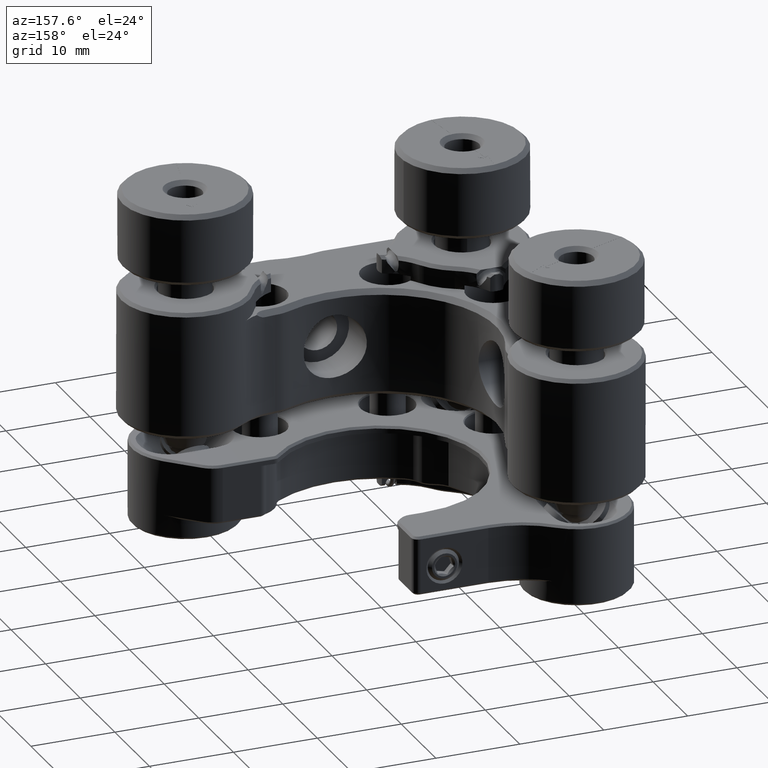
[diagram: clean part render]
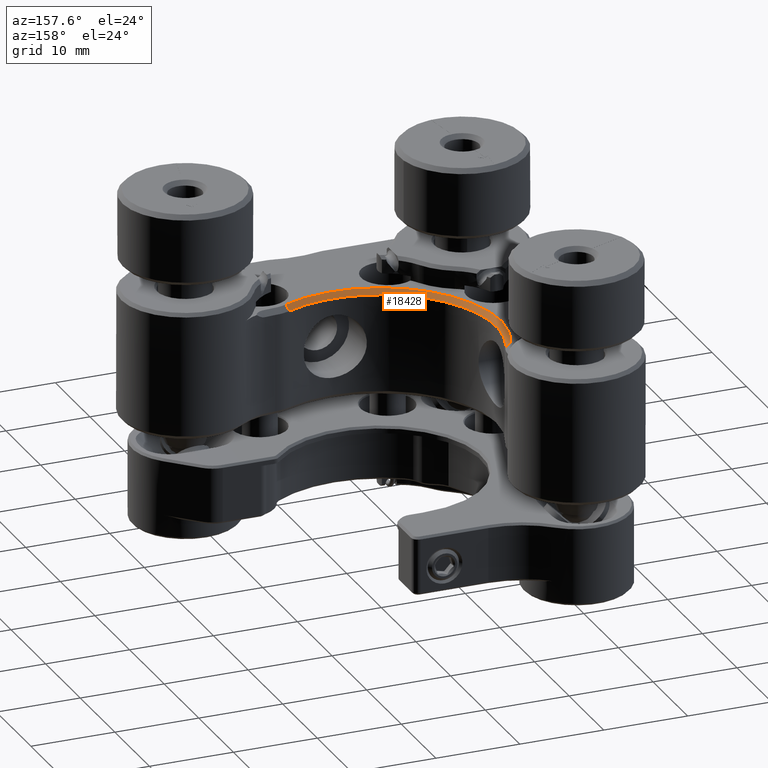
[diagram: same view with one face highlighted and labeled with its STEP entity id]
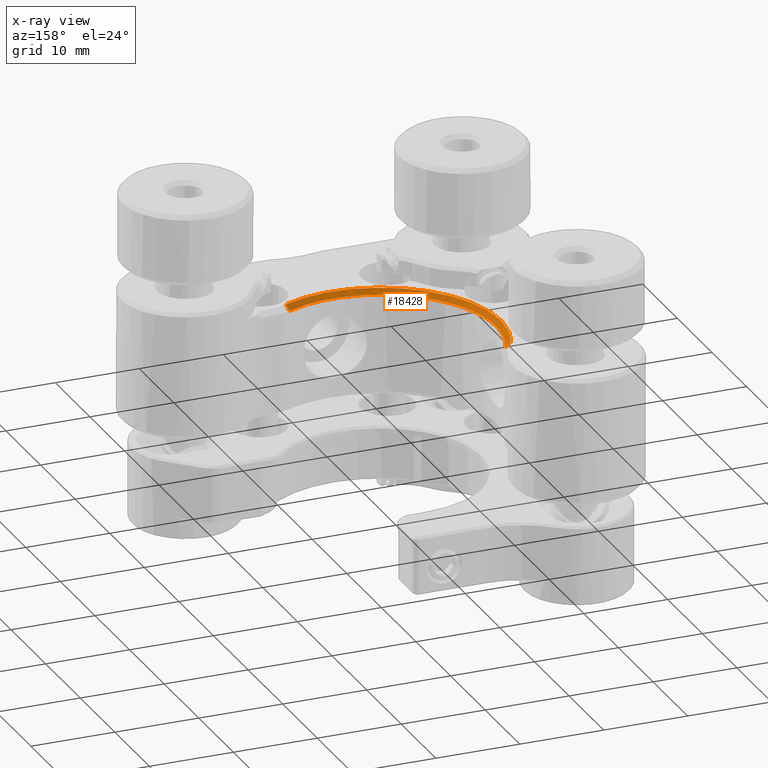
[diagram: x-ray of the same camera — body ghosted, the highlighted face saturated]
A machine part, auxiliary view. The second image highlights one B-rep face of the part: STEP entity #18428.
The next image is the same camera in x-ray: the body ghosted, the highlighted face saturated — about 0% of this face is hidden behind the body in this view.
In plain terms, the highlighted face is a freeform B-spline surface patch.
Its self-contained STEP definition (entity closure, byte-faithful):
#139 = CARTESIAN_POINT ( 'NONE',  ( 19.24730792918984790, 15.64880969866480243, 38.21517109685325408 ) ) ;
#465 = CARTESIAN_POINT ( 'NONE',  ( 16.47653494077884062, 17.38409946762516611, 38.20170909685323579 ) ) ;
#780 = CARTESIAN_POINT ( 'NONE',  ( 17.82237525260752520, 16.44007081035195483, 38.20170909685331395 ) ) ;
#1097 = CARTESIAN_POINT ( 'NONE',  ( 20.73377883949277134, 15.06398501388357403, 38.20170909685329264 ) ) ;
#1455 = CARTESIAN_POINT ( 'NONE',  ( 13.54258543264356973, 21.64574088706451960, 37.61534364687400966 ) ) ;
#1518 = CARTESIAN_POINT ( 'NONE',  ( 16.47653494077890457, 17.38409946762524783, 38.20170909685313632 ) ) ;
#1773 = CARTESIAN_POINT ( 'NONE',  ( 11.99331800881225440, 31.73110454596939789, 37.61402657809988170 ) ) ;
#2089 = CARTESIAN_POINT ( 'NONE',  ( 13.90916373422556696, 21.05901207916309659, 37.61600211872718802 ) ) ;
#2531 = CARTESIAN_POINT ( 'NONE',  ( 11.02171863510696248, 28.69785547257853509, 38.21517109685329672 ) ) ;
#2688 = CARTESIAN_POINT ( 'NONE',  ( 31.09112811455937475, 16.98377057734138162, 36.85550909685332499 ) ) ;
#4687 = CARTESIAN_POINT ( 'NONE',  ( 16.18799403821036620, 19.44093970184710685, 36.85550909685332499 ) ) ;
#4715 = CARTESIAN_POINT ( 'NONE',  ( 31.11827903063990064, 16.17198825368979698, 37.61121635124558793 ) ) ;
#4998 = CARTESIAN_POINT ( 'NONE',  ( 11.14140184896129426, 30.34918086200402598, 38.20170909685323579 ) ) ;
#5029 = CARTESIAN_POINT ( 'NONE',  ( 26.42193150484583697, 14.93052654547742364, 37.61429102110292888 ) ) ;
#5318 = CARTESIAN_POINT ( 'NONE',  ( 15.22428938196096126, 18.47723504559770191, 38.21517109685326830 ) ) ;
#5633 = CARTESIAN_POINT ( 'NONE',  ( 13.60665585786252763, 34.05386472451843360, 36.85550909685329657 ) ) ;
#5951 = CARTESIAN_POINT ( 'NONE',  ( 20.72942653682288494, 15.05121794035752636, 38.21517109685328251 ) ) ;
#5982 = CARTESIAN_POINT ( 'NONE',  ( 12.28312200207011351, 32.74173651377132899, 37.61212592964550083 ) ) ;
#6044 = CARTESIAN_POINT ( 'NONE',  ( 11.14140184896139552, 30.34918086200401532, 38.20170909685313632 ) ) ;
#6629 = CARTESIAN_POINT ( 'NONE',  ( 12.63625213476524856, 33.73030105951978186, 37.62070971113516293 ) ) ;
#6693 = CARTESIAN_POINT ( 'NONE',  ( 15.23383101222092861, 18.48677667585766571, 38.20170909685316474 ) ) ;
#6887 = EDGE_CURVE ( 'NONE', #57443, #63410, #55216, .T. ) ;
#6942 = CARTESIAN_POINT ( 'NONE',  ( 12.16968932455882424, 24.83846745172613879, 37.61552860554282773 ) ) ;
#7223 = CARTESIAN_POINT ( 'NONE',  ( 28.33187767364583465, 15.98636402371899479, 36.85550909685331078 ) ) ;
#7388 = CARTESIAN_POINT ( 'NONE',  ( 11.40725869048616303, 31.89555003162396218, 38.21517109685329672 ) ) ;
#7547 = CARTESIAN_POINT ( 'NONE',  ( 30.80091906088165743, 16.85960152149919011, 36.85550909685329657 ) ) ;
#9531 = CARTESIAN_POINT ( 'NONE',  ( 31.57861752059183758, 15.72868076352413524, 38.20170909685327842 ) ) ;
#9852 = CARTESIAN_POINT ( 'NONE',  ( 11.39048940095305085, 25.48101563646892131, 38.20170909685329264 ) ) ;
#9881 = CARTESIAN_POINT ( 'NONE',  ( 28.49144771488204597, 15.26319054590263491, 37.61470712646657688 ) ) ;
#10166 = CARTESIAN_POINT ( 'NONE',  ( 13.18712514671522484, 21.07532091624426940, 38.20170909685323579 ) ) ;
#10482 = CARTESIAN_POINT ( 'NONE',  ( 11.79827227672081769, 23.98237220045965046, 38.21517109685325408 ) ) ;
#10807 = CARTESIAN_POINT ( 'NONE',  ( 11.12184241177692101, 27.06301735298007216, 38.20170909685327842 ) ) ;
#10838 = CARTESIAN_POINT ( 'NONE',  ( 14.73979863436963456, 19.95090695494809196, 37.61545838139014819 ) ) ;
#10905 = CARTESIAN_POINT ( 'NONE',  ( 25.44483637994455449, 14.28815705442954886, 38.20170909685312211 ) ) ;
#11161 = CARTESIAN_POINT ( 'NONE',  ( 11.99588341202367836, 25.50774107431071513, 37.61533168876301403 ) ) ;
#11482 = EDGE_CURVE ( 'NONE', #14895, #24430, #29154, .T. ) ;
#11486 = CARTESIAN_POINT ( 'NONE',  ( 21.59608162914361529, 15.41970801569829064, 37.61552812793805600 ) ) ;
#11799 = CARTESIAN_POINT ( 'NONE',  ( 11.67761906689467644, 27.57191919351598841, 37.61449095341420445 ) ) ;
#12111 = CARTESIAN_POINT ( 'NONE',  ( 14.52398573624372347, 20.22246642359109003, 37.61573648004084447 ) ) ;
#12176 = CARTESIAN_POINT ( 'NONE',  ( 11.82691542274671015, 33.31512307659389194, 38.20170909685320737 ) ) ;
#12246 = CARTESIAN_POINT ( 'NONE',  ( 12.37213798521386110, 34.62364220420244010, 38.21517109685329672 ) ) ;
#12598 = CARTESIAN_POINT ( 'NONE',  ( 31.36505517938078214, 15.63730659808464019, 38.20170909685329264 ) ) ;
#12791 = EDGE_CURVE ( 'NONE', #63410, #24430, #60910, .T. ) ;
#14309 = ORIENTED_EDGE ( 'NONE', *, *, #6887, .F. ) ;
#14702 = CARTESIAN_POINT ( 'NONE',  ( 31.37069654056568524, 15.62508364885051648, 38.21517109685328251 ) ) ;
#14729 = CARTESIAN_POINT ( 'NONE',  ( 30.47828842518209314, 15.88962203464849487, 37.62071993242517465 ) ) ;
#14895 = VERTEX_POINT ( 'NONE', #62038 ) ;
#15020 = CARTESIAN_POINT ( 'NONE',  ( 30.93980475562874233, 15.45536018209787343, 38.20170909685330685 ) ) ;
#15333 = CARTESIAN_POINT ( 'NONE',  ( 12.73341836008228789, 31.58482333728262503, 36.85550909685326815 ) ) ;
#15650 = CARTESIAN_POINT ( 'NONE',  ( 12.70609603168188606, 25.77817069832920183, 36.85550909685331078 ) ) ;
#15681 = CARTESIAN_POINT ( 'NONE',  ( 12.63160286224371021, 23.52950076041407712, 37.61468332382983704 ) ) ;
#15744 = CARTESIAN_POINT ( 'NONE',  ( 17.82237525260757849, 16.44007081035204010, 38.20170909685322158 ) ) ;
#15973 = CARTESIAN_POINT ( 'NONE',  ( 31.69134139696379293, 15.76227381893289348, 38.21517109685326830 ) ) ;
#16324 = CARTESIAN_POINT ( 'NONE',  ( 23.29573300726789853, 15.06154552475322816, 37.61464769888200976 ) ) ;
#16927 = CARTESIAN_POINT ( 'NONE',  ( 30.99439176333346779, 16.94238089206065112, 36.85550909685331078 ) ) ;
#17024 = CARTESIAN_POINT ( 'NONE',  ( 20.73377883949280687, 15.06398501388366817, 38.20170909685319316 ) ) ;
#18428 = ADVANCED_FACE ( 'NONE', ( #42006 ), #53932, .F. ) ;
#19546 = CARTESIAN_POINT ( 'NONE',  ( 17.81525352163207998, 16.42861292716645139, 38.21517109685332514 ) ) ;
#19612 = CARTESIAN_POINT ( 'NONE',  ( 12.91758081580430328, 34.37189935931454698, 37.61443626234245130 ) ) ;
#19869 = CARTESIAN_POINT ( 'NONE',  ( 25.44483637994455449, 14.28815705442944761, 38.20170909685322158 ) ) ;
#20193 = CARTESIAN_POINT ( 'NONE',  ( 23.81007168934331020, 14.37478807541361903, 38.20170909685327842 ) ) ;
#20506 = CARTESIAN_POINT ( 'NONE',  ( 22.22806997283215580, 14.64343506458976130, 38.20170909685327842 ) ) ;
#20537 = CARTESIAN_POINT ( 'NONE',  ( 18.40430374732352803, 16.78844927896954786, 37.61532440895802409 ) ) ;
#20834 = CARTESIAN_POINT ( 'NONE',  ( 19.25306522646351581, 15.66101148430237444, 38.20170909685326421 ) ) ;
#21257 = CARTESIAN_POINT ( 'NONE',  ( 11.12184241177702226, 27.06301735298008282, 38.20170909685317895 ) ) ;
#21500 = VECTOR ( 'NONE', #44379, 1000.000000000000114 ) ;
#22912 = ORIENTED_EDGE ( 'NONE', *, *, #37976, .F. ) ;
#24415 = CARTESIAN_POINT ( 'NONE',  ( 11.82691542274661423, 33.31512307659392746, 38.20170909685330685 ) ) ;
#24430 = VERTEX_POINT ( 'NONE', #19612 ) ;
#24731 = CARTESIAN_POINT ( 'NONE',  ( 15.23383101222085578, 18.48677667585759465, 38.20170909685326421 ) ) ;
#25050 = CARTESIAN_POINT ( 'NONE',  ( 31.47757815936505565, 15.67081370554464215, 38.21517109685328251 ) ) ;
#25368 = CARTESIAN_POINT ( 'NONE',  ( 12.39586403502807599, 22.50025359282660276, 38.21517109685328251 ) ) ;
#25685 = CARTESIAN_POINT ( 'NONE',  ( 15.19029148931350548, 20.56515786151791403, 36.85550909685329657 ) ) ;
#25781 = CARTESIAN_POINT ( 'NONE',  ( 22.22806997283218067, 14.64343506458986077, 38.20170909685317895 ) ) ;
#26365 = CARTESIAN_POINT ( 'NONE',  ( 19.64657653224599443, 16.14015667295484491, 37.61416281658994620 ) ) ;
#26430 = CARTESIAN_POINT ( 'NONE',  ( 11.42038898424463866, 31.89247352969976745, 38.20170909685320737 ) ) ;
#26649 = CARTESIAN_POINT ( 'NONE',  ( 26.93453332186023275, 15.73371616661022721, 36.85550909685328236 ) ) ;
#27128 = CARTESIAN_POINT ( 'NONE',  ( 11.12800816242117108, 30.35079788076910035, 38.21517109685322566 ) ) ;
#29154 = B_SPLINE_CURVE_WITH_KNOTS ( 'NONE', 3,
 ( #4715, #44176, #14729, #34478, #54202, #49664, #9881, #29618, #49351, #5029, #55806, #35757, #36075, #31849, #16324, #31537, #11486, #40274, #26365, #20537, #46104, #45132, #56437, #31219, #55483, #10838, #12111, #2089, #1455, #51579, #60018, #15681, #35430, #6942, #11161, #51270, #11799, #50954, #55157, #60342, #1773, #5982, #30576, #6629, #60665, #45782 ),
 .UNSPECIFIED., .F., .F.,
 ( 4, 2, 2, 2, 2, 2, 2, 2, 2, 2, 2, 2, 2, 2, 2, 2, 2, 2, 2, 2, 2, 2, 4 ),
 ( 0.000000000000000000, 0.001041504853511398447, 0.002083009707022796895, 0.003124514560534194258, 0.004166019414045591188, 0.006249029121068396322, 0.007290533974579793686, 0.008332038828091191049, 0.01041504853511398751, 0.01249805824213678050, 0.01458106794915957696, 0.01666407765618237169, 0.01770558250969377079, 0.01874708736320516642, 0.02083009707022796808, 0.02187160192373936718, 0.02291310677725076975, 0.02499611648427358529, 0.02707912619129640083, 0.02916213589831921638, 0.03124514560534203192, 0.03228665045885344143, 0.03332815531236484746 ),
 .UNSPECIFIED. ) ;
#29268 = CARTESIAN_POINT ( 'NONE',  ( 11.81103935024686535, 23.98672450312954041, 38.20170909685326421 ) ) ;
#29590 = CARTESIAN_POINT ( 'NONE',  ( 18.53454835015208246, 17.58585912890245950, 36.85550909685326815 ) ) ;
#29618 = CARTESIAN_POINT ( 'NONE',  ( 27.80898701270587026, 15.12198504202513050, 37.61515041787380653 ) ) ;
#29906 = CARTESIAN_POINT ( 'NONE',  ( 27.09785221713232772, 14.38095382605784245, 38.21517109685329672 ) ) ;
#30221 = CARTESIAN_POINT ( 'NONE',  ( 30.06659316743984789, 15.06711379530637984, 38.21517109685332514 ) ) ;
#30546 = CARTESIAN_POINT ( 'NONE',  ( 14.33291346526588583, 21.78749401378894390, 36.85550909685338183 ) ) ;
#30576 = CARTESIAN_POINT ( 'NONE',  ( 12.39255875313726918, 33.07461510651230441, 37.61343658967266634 ) ) ;
#30637 = CARTESIAN_POINT ( 'NONE',  ( 28.63952786606301615, 14.67333464788130648, 38.20170909685320737 ) ) ;
#31219 = CARTESIAN_POINT ( 'NONE',  ( 15.43264774837954079, 19.16488151280572794, 37.61442905596944541 ) ) ;
#31286 = CARTESIAN_POINT ( 'NONE',  ( 30.06217741295715484, 15.07986108638338685, 38.20170909685323579 ) ) ;
#31537 = CARTESIAN_POINT ( 'NONE',  ( 22.26632721708164553, 15.24595098390902059, 37.61532466078781312 ) ) ;
#31600 = CARTESIAN_POINT ( 'NONE',  ( 11.39048940095314677, 25.48101563646894618, 38.20170909685319316 ) ) ;
#31849 = CARTESIAN_POINT ( 'NONE',  ( 23.64406826967231368, 15.01278821595814783, 37.61441655266061446 ) ) ;
#32131 = CARTESIAN_POINT ( 'NONE',  ( 23.95669651291891711, 15.71597601095844965, 36.85550909685332499 ) ) ;
#34449 = CARTESIAN_POINT ( 'NONE',  ( 11.03521139079274604, 28.69778204358132001, 38.20170909685329264 ) ) ;
#34478 = CARTESIAN_POINT ( 'NONE',  ( 29.82608072346192429, 15.64706708818155612, 37.61348564874927547 ) ) ;
#34767 = CARTESIAN_POINT ( 'NONE',  ( 28.64260436798720733, 14.66020435412283085, 38.21517109685329672 ) ) ;
#35037 = CARTESIAN_POINT ( 'NONE',  ( 12.98939692153819259, 34.33875346436043685, 37.53534009685328954 ) ) ;
#35066 = CARTESIAN_POINT ( 'NONE',  ( 12.38436093444797415, 34.61800084301751923, 38.20170909685329264 ) ) ;
#35081 = CARTESIAN_POINT ( 'NONE',  ( 27.09623519836725691, 14.39434751259796386, 38.20170909685330685 ) ) ;
#35399 = CARTESIAN_POINT ( 'NONE',  ( 13.62824438442279984, 23.08174061746697703, 36.85550909685329657 ) ) ;
#35430 = CARTESIAN_POINT ( 'NONE',  ( 12.50656381434733966, 23.85426819453944702, 37.61499448935905576 ) ) ;
#35495 = CARTESIAN_POINT ( 'NONE',  ( 13.18712514671531011, 21.07532091624432624, 38.20170909685313632 ) ) ;
#35757 = CARTESIAN_POINT ( 'NONE',  ( 24.68610277189404201, 14.92081307572943061, 37.61458993305300424 ) ) ;
#36075 = CARTESIAN_POINT ( 'NONE',  ( 24.33880697063406373, 14.94254707535714033, 37.61442431033312772 ) ) ;
#37149 = CARTESIAN_POINT ( 'NONE',  ( 11.37733333464576191, 25.47804408585031766, 38.21517109685328251 ) ) ;
#37976 = EDGE_CURVE ( 'NONE', #14895, #57443, #48598, .T. ) ;
#38563 = CARTESIAN_POINT ( 'NONE',  ( 31.08580780072367133, 16.24234258517485330, 37.53534009685328954 ) ) ;
#39288 = CARTESIAN_POINT ( 'NONE',  ( 14.12056242713518195, 19.72112383184456519, 38.21517109685329672 ) ) ;
#39617 = CARTESIAN_POINT ( 'NONE',  ( 28.63952786606303391, 14.67333464788120878, 38.20170909685330685 ) ) ;
#39931 = CARTESIAN_POINT ( 'NONE',  ( 13.44182360228067452, 33.66861726826992651, 36.85550909685329657 ) ) ;
#40246 = CARTESIAN_POINT ( 'NONE',  ( 12.48077050297368373, 30.18747898549698760, 36.85550909685336762 ) ) ;
#40274 = CARTESIAN_POINT ( 'NONE',  ( 20.28688337273868569, 15.86646170454003624, 37.61482994110115641 ) ) ;
#40568 = CARTESIAN_POINT ( 'NONE',  ( 13.10164453043747912, 32.87354762832623578, 36.85550909685329657 ) ) ;
#40664 = CARTESIAN_POINT ( 'NONE',  ( 27.09623519836724626, 14.39434751259806511, 38.20170909685320737 ) ) ;
#41018 = ORIENTED_EDGE ( 'NONE', *, *, #11482, .T. ) ;
#42006 = FACE_OUTER_BOUND ( 'NONE', #63036, .T. ) ;
#42156 = CARTESIAN_POINT ( 'NONE',  ( 22.52522503469243631, 15.95904169531860894, 36.85550909685331078 ) ) ;
#42319 = CARTESIAN_POINT ( 'NONE',  ( 12.19002042762302018, 34.19799175077545073, 38.21517109685329672 ) ) ;
#43695 = VECTOR ( 'NONE', #50557, 1000.000000000000114 ) ;
#44146 = CARTESIAN_POINT ( 'NONE',  ( 12.38448695937113264, 28.69043914385967753, 36.85550909685329657 ) ) ;
#44176 = CARTESIAN_POINT ( 'NONE',  ( 30.80060317578121953, 16.02359292131369273, 37.62430012236862353 ) ) ;
#44379 = DIRECTION ( 'NONE',  ( 0.2963188789949959268, -0.6420242378222482671, 0.7071067811864840680 ) ) ;
#44465 = CARTESIAN_POINT ( 'NONE',  ( 25.44490980894176957, 14.27466429874366227, 38.21517109685322566 ) ) ;
#44790 = CARTESIAN_POINT ( 'NONE',  ( 31.58445977816442252, 15.71654376223876781, 38.21517109685326830 ) ) ;
#45102 = CARTESIAN_POINT ( 'NONE',  ( 30.94504608713869587, 15.44296609125967912, 38.21517109685329672 ) ) ;
#45118 = ORIENTED_EDGE ( 'NONE', *, *, #12791, .F. ) ;
#45132 = CARTESIAN_POINT ( 'NONE',  ( 16.70045713603817816, 17.97393808313024266, 37.61565802496657085 ) ) ;
#45419 = CARTESIAN_POINT ( 'NONE',  ( 14.13115380398843257, 19.72948060441558837, 38.20170909685329264 ) ) ;
#45514 = CARTESIAN_POINT ( 'NONE',  ( 12.20241451846130865, 34.19275041926546521, 38.20170909685319316 ) ) ;
#45782 = CARTESIAN_POINT ( 'NONE',  ( 12.91758081580430328, 34.37189935931454698, 37.61443626234245130 ) ) ;
#46104 = CARTESIAN_POINT ( 'NONE',  ( 17.81557975024094631, 17.15587302620508936, 37.61599803360410732 ) ) ;
#46168 = CARTESIAN_POINT ( 'NONE',  ( 23.81007168934332086, 14.37478807541372028, 38.20170909685317895 ) ) ;
#47018 = CARTESIAN_POINT ( 'NONE',  ( 29.62060196468947737, 16.35459019407405989, 36.85550909685323973 ) ) ;
#48598 = LINE ( 'NONE', #38563, #21500 ) ;
#49005 = CARTESIAN_POINT ( 'NONE',  ( 31.36505517938069332, 15.63730659808466150, 38.20170909685329264 ) ) ;
#49324 = CARTESIAN_POINT ( 'NONE',  ( 19.82879495383025059, 16.88119004805959378, 36.85550909685335341 ) ) ;
#49351 = CARTESIAN_POINT ( 'NONE',  ( 27.46272749488532838, 15.06399754382301559, 37.61478417030679822 ) ) ;
#49636 = CARTESIAN_POINT ( 'NONE',  ( 11.42038898424454096, 31.89247352969978877, 38.20170909685330685 ) ) ;
#49664 = CARTESIAN_POINT ( 'NONE',  ( 28.82887115614898477, 15.34654603108554838, 37.61334462160067460 ) ) ;
#49956 = CARTESIAN_POINT ( 'NONE',  ( 30.06217741295717261, 15.07986108638328737, 38.20170909685332816 ) ) ;
#50049 = CARTESIAN_POINT ( 'NONE',  ( 11.81103935024696128, 23.98672450312956883, 38.20170909685316474 ) ) ;
#50279 = CARTESIAN_POINT ( 'NONE',  ( 12.20241451846121450, 34.19275041926550074, 38.20170909685329264 ) ) ;
#50371 = CARTESIAN_POINT ( 'NONE',  ( 12.40806582066574038, 22.50601089010030975, 38.20170909685319316 ) ) ;
#50557 = DIRECTION ( 'NONE',  ( 0.6420242378222482671, -0.2963188789949959268, -0.7071067811864840680 ) ) ;
#50692 = CARTESIAN_POINT ( 'NONE',  ( 12.38436093444797415, 34.61800084301751923, 38.20170909685329264 ) ) ;
#50924 = CARTESIAN_POINT ( 'NONE',  ( 30.41567160463315389, 16.69476926591731214, 36.85550909685328236 ) ) ;
#50954 = CARTESIAN_POINT ( 'NONE',  ( 11.64169423766075973, 28.97325743753741278, 37.61486216103004665 ) ) ;
#51270 = CARTESIAN_POINT ( 'NONE',  ( 11.74978634424482493, 26.87255969130271893, 37.61443525091356577 ) ) ;
#51579 = CARTESIAN_POINT ( 'NONE',  ( 13.05864217915446268, 22.57003177559505147, 37.61446683847579209 ) ) ;
#51710 = CARTESIAN_POINT ( 'NONE',  ( 11.81416813166970670, 33.31953883107660630, 38.21517109685329672 ) ) ;
#51867 = CARTESIAN_POINT ( 'NONE',  ( 25.43749348022289425, 15.63743262300795678, 36.85550909685338183 ) ) ;
#53852 = CARTESIAN_POINT ( 'NONE',  ( 13.08774670285151132, 24.42195477011853555, 36.85550909685333920 ) ) ;
#53932 = B_SPLINE_SURFACE_WITH_KNOTS ( 'NONE', 1, 3, ( 
 ( #12246, #42319, #51710, #7388, #27128, #2531, #61746, #37149, #10482, #25368, #59355, #39288, #5318, #59027, #19546, #139, #5951, #59988, #59670, #44465, #29906, #34767, #30221, #45102, #14702, #25050, #44790, #15973 ),
 ( #54172, #50279, #24415, #49636, #4998, #34449, #10807, #9852, #29268, #54807, #10166, #45419, #24731, #465, #780, #20834, #1097, #20506, #20193, #19869, #35081, #39617, #49956, #15020, #49005, #55127, #9531, #54495 ),
 ( #5633, #39931, #40568, #15333, #40246, #44146, #60311, #15650, #53852, #35399, #30546, #25685, #4687, #63889, #29590, #49324, #61587, #42156, #32131, #51867, #26649, #7223, #47018, #50924, #7547, #56405, #16927, #2688 ) ),
 .UNSPECIFIED., .F., .F., .F.,
 ( 2, 1, 2 ),
 ( 4, 1, 1, 1, 1, 1, 1, 1, 1, 1, 1, 1, 1, 1, 1, 1, 1, 1, 1, 1, 1, 1, 3, 4 ),
 ( -0.01000000000000000021, 0.000000000000000000, 1.000000000000000000 ),
 ( 0.000000000000000000, 0.03982447666946239972, 0.08218933522590329832, 0.1271469608448657640, 0.1746665542464924392, 0.2245396789897321776, 0.2678365358692267884, 0.3125147355520390136, 0.3582891668140400498, 0.4049945860116121454, 0.4523698004075304424, 0.4999999999999997780, 0.5476301995924692800, 0.5950054139883876880, 0.6417108331859597836, 0.6874852644479608754, 0.7321634641307730451, 0.7754603210102677391, 0.8253334457535075330, 0.8728530391551344580, 0.9178106647740966739, 0.9601755233305375725, 1.000000000000000000, 1.010000000000000009 ),
 .UNSPECIFIED. ) ;
#54172 = CARTESIAN_POINT ( 'NONE',  ( 12.38436093444800612, 34.61800084301744818, 38.20170909685329264 ) ) ;
#54202 = CARTESIAN_POINT ( 'NONE',  ( 29.49618763502380858, 15.53848420190493052, 37.61213512704391349 ) ) ;
#54495 = CARTESIAN_POINT ( 'NONE',  ( 31.68539869119740970, 15.77436784624387123, 38.20170909685326421 ) ) ;
#54807 = CARTESIAN_POINT ( 'NONE',  ( 12.40806582066564800, 22.50601089010026712, 38.20170909685329264 ) ) ;
#55127 = CARTESIAN_POINT ( 'NONE',  ( 31.47183634998626545, 15.68299368080439748, 38.20170909685327842 ) ) ;
#55157 = CARTESIAN_POINT ( 'NONE',  ( 11.67762392519967740, 29.67203662862638325, 37.61429603641614250 ) ) ;
#55216 = B_SPLINE_CURVE_WITH_KNOTS ( 'NONE', 3,
 ( #60084, #55870, #31286, #30637, #40664, #10905, #46168, #25781, #17024, #60408, #15744, #1518, #6693, #61365, #35495, #50371, #50049, #31600, #21257, #55222, #6044, #26430, #12176, #45514, #50692 ),
 .UNSPECIFIED., .F., .F.,
 ( 4, 1, 1, 1, 1, 1, 1, 1, 1, 1, 1, 1, 1, 1, 1, 1, 1, 1, 1, 1, 1, 1, 4 ),
 ( 4.388541835720876531E-17, 0.001386005477283054491, 0.002860423496404753633, 0.004425077211020955401, 0.006078894718268203212, 0.007814621834962596353, 0.009321476056354888184, 0.01087640495070004570, 0.01246948583347526167, 0.01409496775415225792, 0.01574376045983393729, 0.01740142737827625463, 0.01905909429671856503, 0.02070788700240024094, 0.02233336892307723892, 0.02392644980585245315, 0.02548137870019761414, 0.02698823292158989903, 0.02872396003828429217, 0.03037777754553153131, 0.03194243126014773698, 0.03341684927926943938, 0.03480285475655244681 ),
 .UNSPECIFIED. ) ;
#55222 = CARTESIAN_POINT ( 'NONE',  ( 11.03521139079284907, 28.69778204358132356, 38.20170909685319316 ) ) ;
#55483 = CARTESIAN_POINT ( 'NONE',  ( 15.19357541581718074, 19.42263873763136672, 37.61479042585273191 ) ) ;
#55806 = CARTESIAN_POINT ( 'NONE',  ( 25.72777298754023079, 14.89514891651384687, 37.61486057608179578 ) ) ;
#55870 = CARTESIAN_POINT ( 'NONE',  ( 30.93980475562872101, 15.45536018209796936, 38.20170909685320737 ) ) ;
#56405 = CARTESIAN_POINT ( 'NONE',  ( 30.89765541210756439, 16.90099120677992062, 36.85550909685331078 ) ) ;
#56437 = CARTESIAN_POINT ( 'NONE',  ( 16.17406186840692328, 18.42458385672565768, 37.61445100043479073 ) ) ;
#57443 = VERTEX_POINT ( 'NONE', #12598 ) ;
#59027 = CARTESIAN_POINT ( 'NONE',  ( 16.46817816820781744, 17.37350809077191727, 38.21517109685323987 ) ) ;
#59355 = CARTESIAN_POINT ( 'NONE',  ( 13.17566726352971784, 21.06819918526882418, 38.21517109685322566 ) ) ;
#59670 = CARTESIAN_POINT ( 'NONE',  ( 23.80860544110755228, 14.36137619605817228, 38.21517109685328251 ) ) ;
#59988 = CARTESIAN_POINT ( 'NONE',  ( 22.22509842221355214, 14.63027899828247413, 38.21517109685326830 ) ) ;
#60018 = CARTESIAN_POINT ( 'NONE',  ( 12.90785571685149868, 22.88673975312111963, 37.61436175436795537 ) ) ;
#60084 = CARTESIAN_POINT ( 'NONE',  ( 31.36505517938078214, 15.63730659808464019, 38.20170909685329264 ) ) ;
#60311 = CARTESIAN_POINT ( 'NONE',  ( 12.46303034732173032, 27.20964217655568618, 36.85550909685331078 ) ) ;
#60342 = CARTESIAN_POINT ( 'NONE',  ( 11.85348524594150632, 31.04970519747803337, 37.61493615183028538 ) ) ;
#60408 = CARTESIAN_POINT ( 'NONE',  ( 19.25306522646355845, 15.66101148430246859, 38.20170909685316474 ) ) ;
#60665 = CARTESIAN_POINT ( 'NONE',  ( 12.77060765914417395, 34.05345751988473779, 37.62430060678928356 ) ) ;
#60910 = LINE ( 'NONE', #35037, #43695 ) ;
#61365 = CARTESIAN_POINT ( 'NONE',  ( 14.13115380398851251, 19.72948060441565232, 38.20170909685319316 ) ) ;
#61587 = CARTESIAN_POINT ( 'NONE',  ( 21.16900910648174161, 16.34069236648817736, 36.85550909685331078 ) ) ;
#61746 = CARTESIAN_POINT ( 'NONE',  ( 11.10843053242147427, 27.06155110474431424, 38.21517109685328251 ) ) ;
#62038 = CARTESIAN_POINT ( 'NONE',  ( 31.11827903063990064, 16.17198825368979698, 37.61121635124558793 ) ) ;
#63036 = EDGE_LOOP ( 'NONE', ( #14309, #22912, #41018, #45118 ) ) ;
#63410 = VERTEX_POINT ( 'NONE', #35066 ) ;
#63889 = CARTESIAN_POINT ( 'NONE',  ( 17.31221219788123022, 18.44323715295033494, 36.85550909685336762 ) ) ;